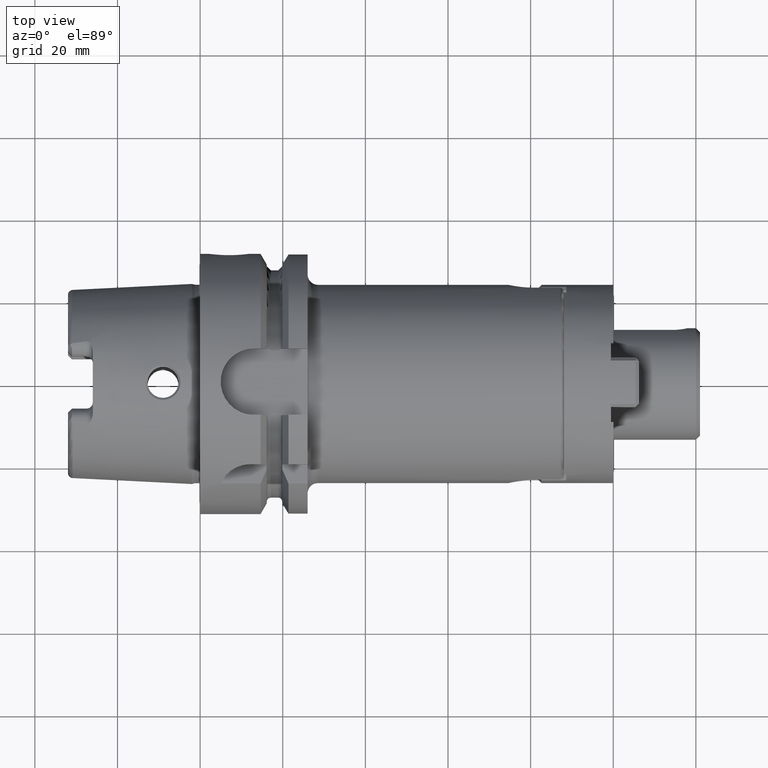
[diagram: clean part render]
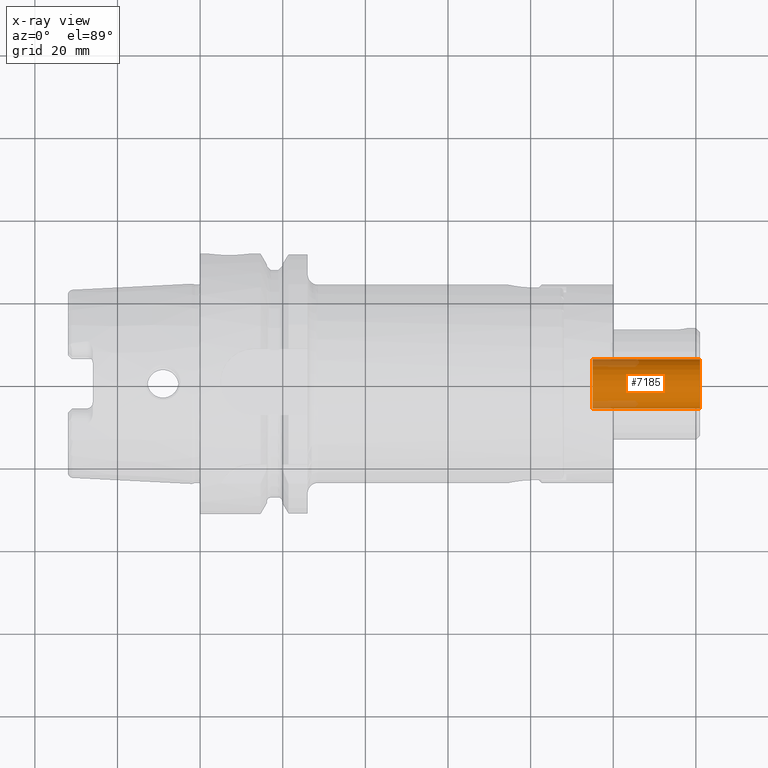
[diagram: x-ray — body ghosted, one internal face saturated and labeled with its STEP entity id]
A machine part, top view, then the same camera in x-ray: the body is ghosted and one INTERNAL B-rep face — a face not visible from any outside direction — is saturated and labeled: STEP entity #7185.
In plain terms, the highlighted cylindrical surface (edge-blend (fillet) strip) has radius 6 mm, axis along (1, 0, 0).
Its self-contained STEP definition (entity closure, byte-faithful):
#7111=CARTESIAN_POINT('',(1.21E2,0.E0,0.E0));
#7112=DIRECTION('',(-1.E0,0.E0,0.E0));
#7113=DIRECTION('',(0.E0,-1.E0,0.E0));
#7114=AXIS2_PLACEMENT_3D('',#7111,#7112,#7113);
#7116=DIRECTION('',(-1.E0,0.E0,0.E0));
#7117=VECTOR('',#7116,2.6E1);
#7118=CARTESIAN_POINT('',(1.21E2,6.E0,0.E0));
#7119=LINE('',#7118,#7117);
#7120=DIRECTION('',(-1.E0,0.E0,0.E0));
#7121=VECTOR('',#7120,2.6E1);
#7122=CARTESIAN_POINT('',(1.21E2,-6.E0,0.E0));
#7123=LINE('',#7122,#7121);
#7129=CARTESIAN_POINT('',(9.5E1,0.E0,0.E0));
#7130=DIRECTION('',(-1.E0,0.E0,0.E0));
#7131=DIRECTION('',(0.E0,-1.E0,0.E0));
#7132=AXIS2_PLACEMENT_3D('',#7129,#7130,#7131);
#7144=CARTESIAN_POINT('',(9.5E1,-6.E0,0.E0));
#7145=CARTESIAN_POINT('',(9.5E1,6.E0,0.E0));
#7146=VERTEX_POINT('',#7144);
#7147=VERTEX_POINT('',#7145);
#7148=CARTESIAN_POINT('',(1.21E2,-6.E0,0.E0));
#7149=CARTESIAN_POINT('',(1.21E2,6.E0,0.E0));
#7150=VERTEX_POINT('',#7148);
#7151=VERTEX_POINT('',#7149);
#7172=CARTESIAN_POINT('',(6.580739138511E1,0.E0,0.E0));
#7173=DIRECTION('',(1.E0,0.E0,0.E0));
#7174=DIRECTION('',(0.E0,-1.E0,0.E0));
#7175=AXIS2_PLACEMENT_3D('',#7172,#7173,#7174);
#7176=CYLINDRICAL_SURFACE('',#7175,6.E0);
#7178=ORIENTED_EDGE('',*,*,#7177,.T.);
#7179=ORIENTED_EDGE('',*,*,#7167,.T.);
#7181=ORIENTED_EDGE('',*,*,#7180,.F.);
#7182=ORIENTED_EDGE('',*,*,#7163,.F.);
#7183=EDGE_LOOP('',(#7178,#7179,#7181,#7182));
#7184=FACE_OUTER_BOUND('',#7183,.F.);
#7185=ADVANCED_FACE('',(#7184),#7176,.F.);
#7115=CIRCLE('',#7114,6.E0);
#7133=CIRCLE('',#7132,6.E0);
#7163=EDGE_CURVE('',#7150,#7146,#7123,.T.);
#7167=EDGE_CURVE('',#7151,#7147,#7119,.T.);
#7177=EDGE_CURVE('',#7150,#7151,#7115,.T.);
#7180=EDGE_CURVE('',#7146,#7147,#7133,.T.);